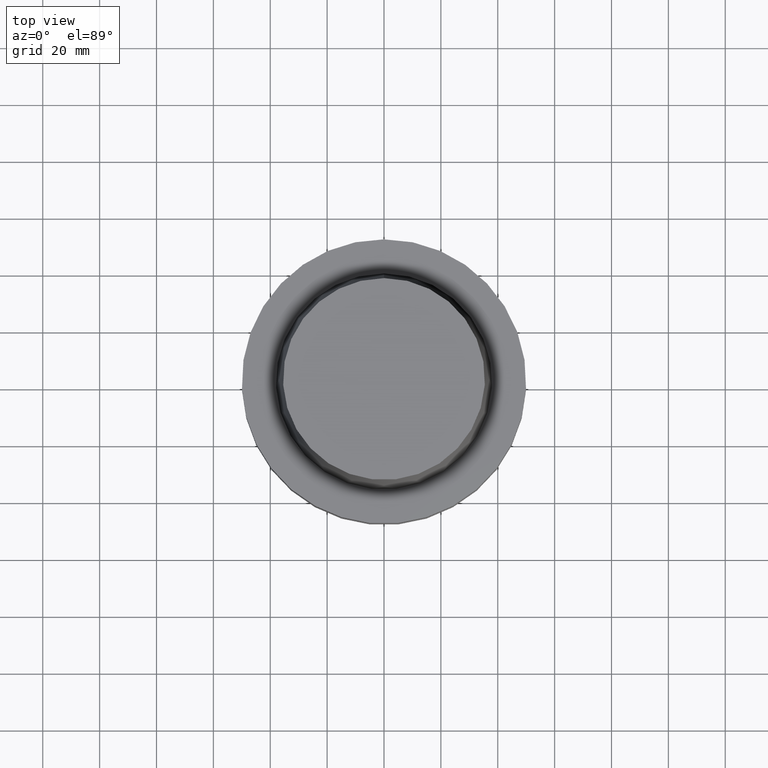
[diagram: clean part render]
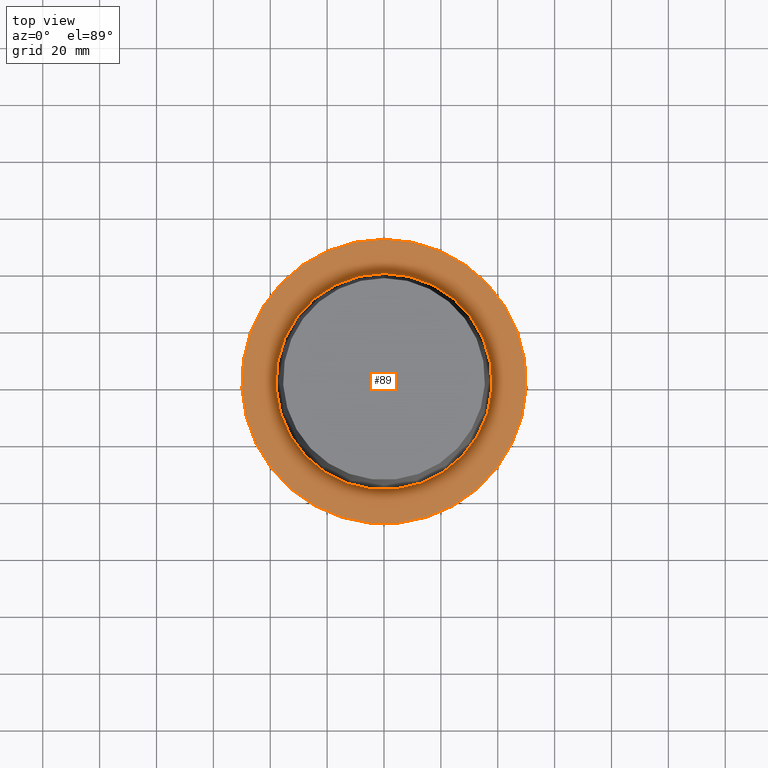
[diagram: same view with one face highlighted and labeled with its STEP entity id]
A machine part, top view. The second image highlights one B-rep face of the part: STEP entity #89.
In plain terms, the highlighted planar face has unit normal (-0, -0, 1).
Its self-contained STEP definition (entity closure, byte-faithful):
#89=ADVANCED_FACE('Unnamed[1]',(#234,#235),#236,.T.);
#157=EDGE_CURVE('Unnamed[1]',#340,#340,#341,.T.);
#177=EDGE_CURVE('Unnamed[1]',#371,#371,#372,.T.);
#234=FACE_OUTER_BOUND('',#437,.T.);
#235=FACE_BOUND('',#438,.T.);
#236=PLANE('',#439);
#340=VERTEX_POINT('',#566);
#341=CIRCLE('',#567,37.9999999999349);
#371=VERTEX_POINT('',#606);
#372=CIRCLE('',#607,50.0);
#437=EDGE_LOOP('',(#668));
#438=EDGE_LOOP('',(#669));
#439=AXIS2_PLACEMENT_3D('',#670,#671,#672);
#566=CARTESIAN_POINT('',(-3.3636548776863E-032,37.9999999999349,-2.44634216324803E-015));
#567=AXIS2_PLACEMENT_3D('',#787,#788,#789);
#606=CARTESIAN_POINT('',(-1.81547968506605E-031,50.0,-9.76766004263236E-016));
#607=AXIS2_PLACEMENT_3D('',#820,#821,#822);
#668=ORIENTED_EDGE('',*,*,#177,.F.);
#669=ORIENTED_EDGE('',*,*,#157,.T.);
#670=CARTESIAN_POINT('',(-1.07592258641734E-031,43.9999999999675,-1.71155408375563E-015));
#671=DIRECTION('',(-6.12323399573677E-017,-1.22464679914735E-016,1.0));
#672=DIRECTION('',(1.23259516440783E-032,-1.0,-1.22464679914735E-016));
#787=CARTESIAN_POINT('',(0.0,0.0,0.0));
#788=DIRECTION('',(6.12323399573677E-017,1.22464679914735E-016,-1.0));
#789=DIRECTION('',(-1.23259516440783E-032,1.0,1.22464679914735E-016));
#820=CARTESIAN_POINT('',(0.0,0.0,0.0));
#821=DIRECTION('',(6.12323399573677E-017,1.22464679914735E-016,-1.0));
#822=DIRECTION('',(-1.23259516440783E-032,1.0,1.22464679914735E-016));